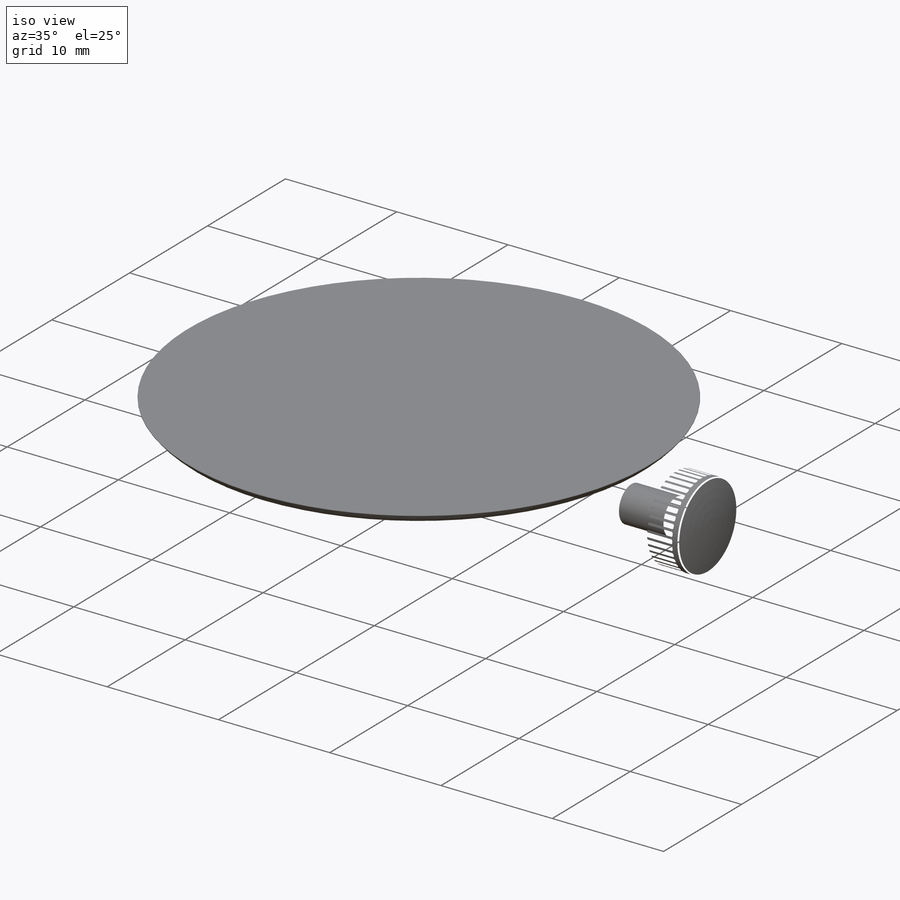
[diagram: iso view]
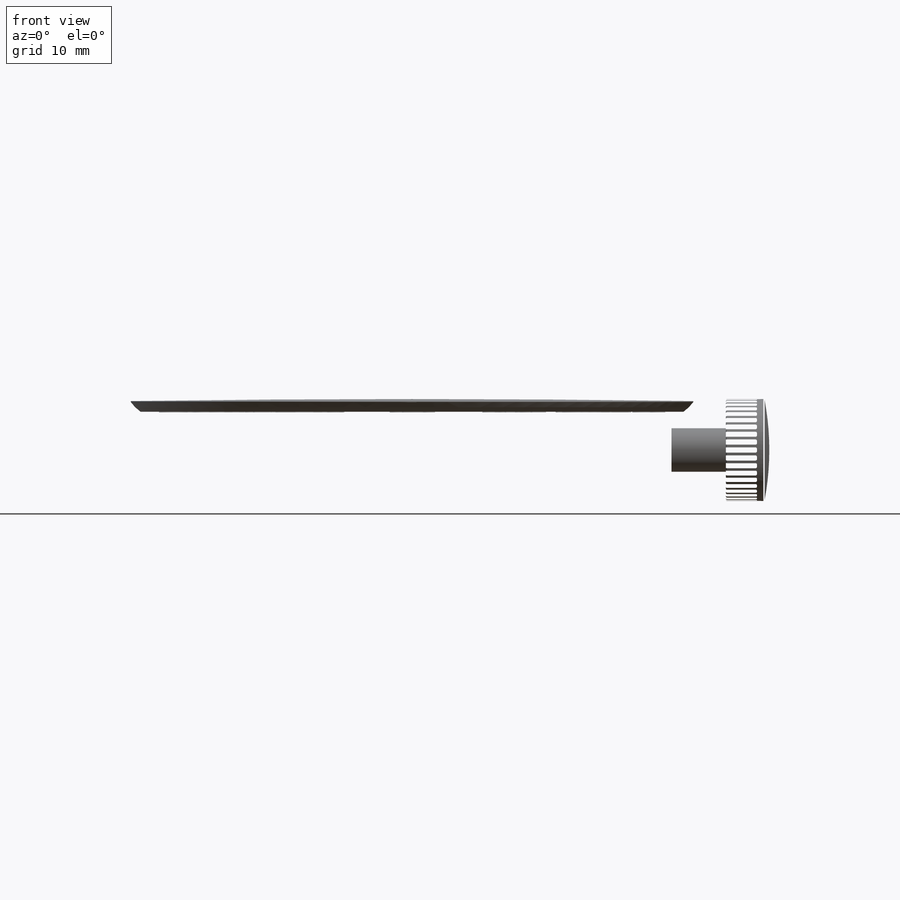
[diagram: front view]
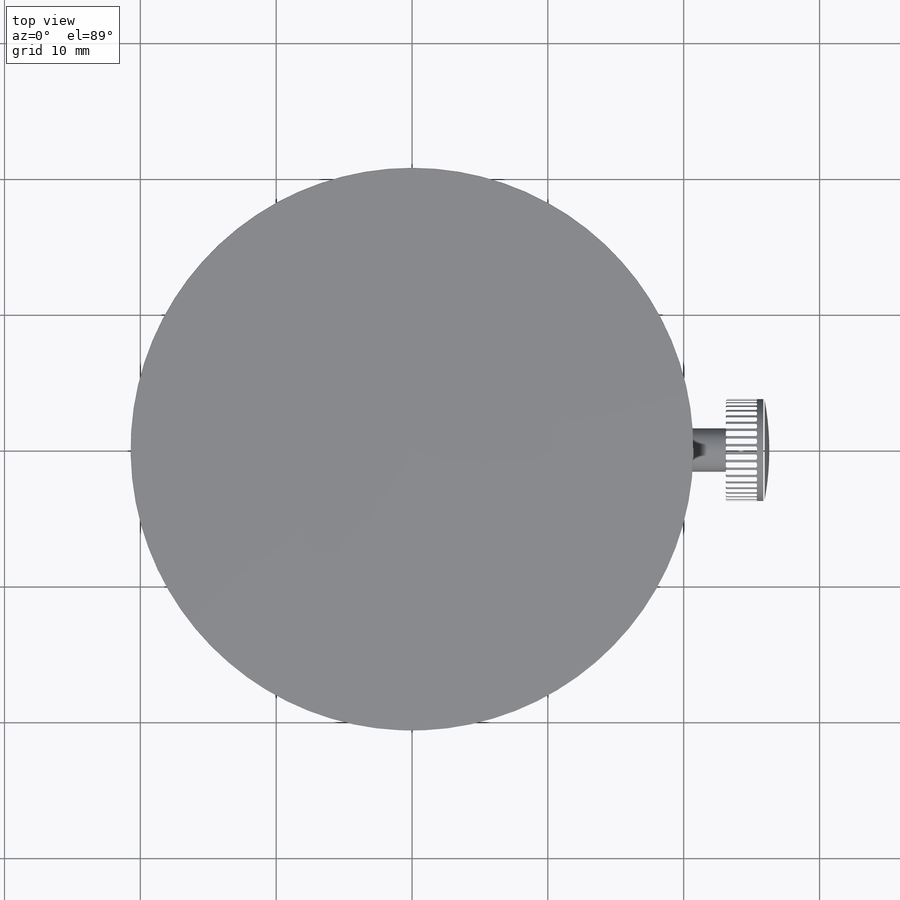
[diagram: top view]
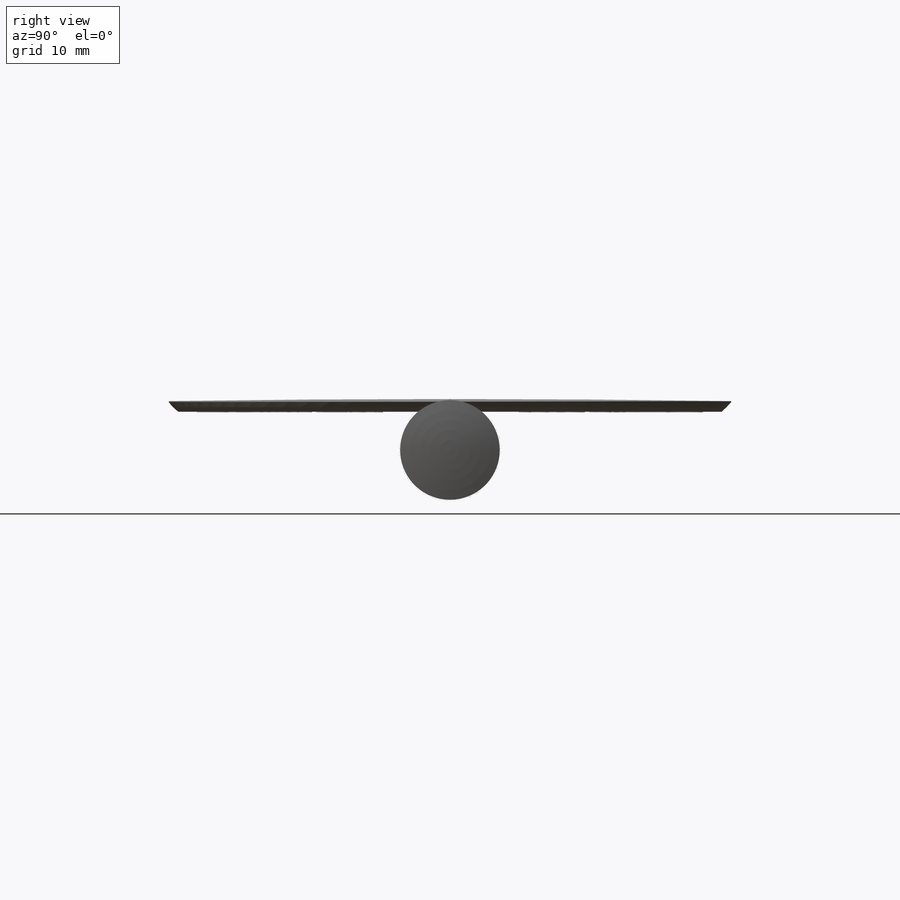
[diagram: right view]
SOLIDWORKS PART (.sldprt)
format: sldprt  version: not decoded by parser v0  size: 12,155,904 bytes
history: native  units: mm
features: sketch x84, fillet x68, cut_extrude x31, extrude x27, plane x12, revolve x9, mirror x6, pattern_circular x3, surface_op x3, material x1, chamfer x1 (+18 scaffold rows collapsed; 7 parser-record rows omitted)
feature tree (270):
  scaffold x18  (default folders/planes/origin — collapsed)
  material  "Material <not specified>"
  plane  "mid"  Offset=1.8mm
  plane  "base"  Offset=5.3mm
  sketch  "Sketch1"  dims[D1=42.0mm]
  parser-record x7  (decoder bookkeeping rows leaked as tree rows — omitted from the tree; the rows remain in map.json)
  sketch  "Sketch2"  dims[c1.D6=3.5mm c1.D1=0.15mm c1.D3=1.5mm c1.D4=5.0mm c1.D2=2.0mm c2.D2=45.0deg c2.D4=0.5mm c2.D5=3.5mm c3.D4=3.0mm c3.D5=0.4mm c3.D7=20.0mm c3.D8=4.5mm c3.D9=1.5mm c3.D2=1.0mm]
  revolve  "Revolve1"  Angle=360deg
  sketch  "Sketch3"  dims[c1.D3=~396.737358mm c1.D5=~396.737358mm c2.D3=~1103.204337mm c2.D1=0.2mm c2.D2=0.5mm c3.D3=2.8mm c4.D3=~179.454365deg c5.D3=0.1mm c5.D4=22.5mm c5.D5=0.3mm c5.D1=0.3mm c5.D6=0.1mm c5.D7=11.9mm c5.D2=0.1mm c6.D3=0.6mm c6.D5=23.0mm c6.D4=2.0mm c7.D3=0.6mm c7.D6=0.05mm c7.D8=0.5mm c7.D2=0.05mm]
  revolve  "Revolve2"  Angle=360deg
  sketch  "Sketch4"  dims[c1.D3=2.6mm c1.D2=2000.15mm c1.D4=2.0mm c1.D1=0.3mm c2.D2=13.0mm c2.D3=0.1mm c2.D4=3.0mm c2.D5=1.5mm c3.D3=1.0mm c3.D5=0.1mm c3.D4=1.4mm c4.D5=1.0mm c4.D1=0.05mm c4.D2=~0.401678mm c5.D2=120.0deg c5.D3=0.6mm c5.D4=0.05mm c6.D2=0.05mm c6.D1=0.0mm c7.D2=0.0mm]
  revolve  "Revolve3"  Angle=360deg
  sketch  "Sketch102"  dims[D1=17.5mm]
  sketch  "Sketch6"  dims[c1.D1=16.0mm c1.D2=19.4mm c2.D1=17.5mm c2.D3=~2.197533mm c2.D2=19.5mm c3.D3=2.2mm c3.D2=4.1mm c4.D3=~2.638798mm c4.D4=~2.507106mm c4.D1=13.0mm c5.D3=~3.773942mm c6.D3=30.0deg c6.D4=~3.256932mm c7.D4=15.0deg c7.D5=4.0mm c8.D5=45.0deg c8.D6=~3.130586mm c9.D6=60.0deg c9.D7=4.0mm c10.D7=75.0deg c10.D8=4.0mm c11.D8=90.0deg c11.D9=~3.98312mm c12.D9=15.0deg c12.D10=~3.945643mm c13.D10=~170.543568deg c14.D10=~3.945643mm c15.D10=30.0deg c15.D11=~3.857599mm c16.D11=45.0deg c16.D12=~3.674091mm c17.D12=60.0deg c17.D13=4.0mm c18.D13=75.0deg c18.D3=~3.981455mm c19.D3=14.0deg c20.D3=0.6mm c20.D2=0.6mm c21.D3=0.6mm c21.D4=0.6mm c21.D1=~17.350285mm c22.D1=82.5deg]
  sketch  "Sketch11"  dims[c1.D1=12.3mm c1.D2=1.25mm c2.D1=2.2mm c2.D2=13.55mm c2.D3=~12.647083mm c3.D3=17.0deg c4.D3=0.6mm]
  cut_extrude  "Cut-Extrude8"  [1 undecoded]
  fillet  "Fillet13"  Radius=0.1mm
  pattern_circular  "CirPattern1"  Count=12 Angle=30deg
  sketch  "Sketch119"  dims[D1=4.1mm D2=17.5mm D3=0.6mm]
  cut_extrude  "Cut-Extrude41"  [1 undecoded]
  fillet  "Fillet82"  Radius=0.1mm
  pattern_circular  "CirPattern4"  Count=12 Angle=360deg
  plane  "Plane3"  Offset=0.01mm
  sketch  "Sketch7"  dims[c1.D1=~16.99683mm c1.D2=16.3mm c2.D1=~2.029183mm c3.D1=165.0deg c4.D1=~16.367718mm c5.D1=3.6deg c5.D3=16.4mm c6.D3=15.0deg]
  extrude  "Boss-Extrude4"  Depth=0.025mm
  sketch  "Sketch12"  dims[c1.D1=12.75mm c1.D2=13.25mm c2.D2=10.0deg c2.D3=~13.514791mm c3.D3=10.0deg c3.D1=0.35mm c4.D3=22.5mm c5.D3=10.0deg]
  extrude  "Boss-Extrude5"  [1 undecoded]
  plane  "Plane1"  Offset=0.7mm
  plane  "Plane4"  Offset=0.05mm
  sketch  "Sketch13"  dims[c1.D1=~31.380653mm c1.D2=19.0mm c1.D3=4.0mm c1.D4=1.5mm c2.D1=~30.324533mm c2.D2=19.55mm c3.D1=0.15mm c3.D2=0.15mm c3.D5=19.15mm c4.D5=55.0deg c4.D6=~38.262504mm c5.D6=~0.899576deg c5.D5=19.15mm c6.D5=65.0deg c6.D6=2.2mm c6.D7=1.2mm c6.D1=0.2mm c6.D2=0.2mm]
  extrude  "Boss-Extrude1"  Depth=0.65mm
  sketch  "Sketch14"  dims[c1.D1=~31.075893mm c1.D2=~24.585151mm c1.D4=0.7mm c1.D5=3.2mm c2.D1=~30.129694mm c2.D2=~21.554118mm c3.D1=0.15mm c3.D2=0.15mm c3.D3=12.45mm c4.D3=~194.744468deg c5.D3=12.45mm c6.D3=60.0deg c6.D5=0.1mm c6.D6=1.7mm c6.D7=1.0mm c6.D1=0.15mm c6.D2=0.6mm]
  extrude  "Boss-Extrude2"  Depth=0.3mm
  sketch  "Sketch23"  dims[c1.D2=~37.293222mm c1.D3=35.0mm c1.D6=3.0mm c1.D7=1.0mm c1.D8=0.6mm c1.D9=31.0mm c1.D10=31.0mm c2.D7=1.0mm c2.D6=1.3mm c2.D3=35.5mm c2.D11=31.5mm c2.D8=0.4mm c2.D9=35.3mm c3.D6=1.0mm c3.D2=0.8mm c3.D4=22.5mm c4.D4=5.0deg c4.D5=33.0mm c4.D10=0.8mm c4.D8=1.0mm c4.D9=1.5mm c5.D9=175.0deg c5.D4=20.7mm c6.D4=5.0deg c6.D3=3.0mm c6.D9=4.6mm c6.D6=1.0mm c6.D1=0.0mm]
  extrude  "Boss-Extrude7"  [1 undecoded]
  sketch  "Sketch25"  dims[c1.D1=4.0mm c1.D2=2.2mm c1.D3=~22.018935mm c1.D4=~31.610697mm c1.D7=41.0mm c1.D9=0.7mm c2.D2=1.5mm c2.D1=1.5mm c2.D3=0.8mm c2.D4=0.8mm c2.D5=~24.144917mm c3.D5=20.0deg c3.D6=5.0mm c3.D8=~1.266434mm c4.D8=~1.35247deg c5.D8=1.0mm c5.D1=1.0mm]
  extrude  "Boss-Extrude8"  Depth=0.05mm
  sketch  "Sketch76"  dims[c1.D1=~21.31353mm c1.D2=~22.31353mm c2.D1=0.5mm c2.D2=0.1mm]
  extrude  "Boss-Extrude17"  [1 undecoded]
  sketch  "Sketch49"  dims[D1=0.4mm]
  cut_extrude  "Cut-Extrude16"  Depth=0.2mm
  sketch  "Sketch72"  dims[c1.D1=~4.788217mm c1.D3=~2.548619mm c2.D1=15.35mm c2.D2=19.65mm c2.D3=~29.678802mm c2.D4=~24.252819mm c3.D2=39.3mm c3.D1=30.7mm c4.D2=39.3mm c4.D1=0.1mm c5.D2=4.3mm c6.D2=90.0deg c6.D3=0.1mm c6.D1=0.1mm c7.D2=0.1mm c7.D3=0.1mm c7.D4=0.1mm c7.D1=0.1mm c8.D2=0.1mm]
  cut_extrude  "Cut-Extrude20"  Depth=0.1mm
  sketch  "Sketch73"  dims[D1=0.0mm D2=0.0mm]
  cut_extrude  "Cut-Extrude21"  Depth=0.1mm
  sketch  "Sketch74"  dims[c1.D1=~38.377448mm c1.D2=~31.432427mm c1.D3=~25.234605mm c1.D4=~28.647541mm c2.D1=0.05mm c2.D2=0.05mm c2.D3=0.05mm c2.D4=0.05mm]
  extrude  "Boss-Extrude15"  Depth=0.025mm
  sketch  "Sketch75"  dims[D1=0.0mm D2=0.0mm]
  extrude  "Boss-Extrude16"  Depth=0.025mm
  sketch  "Sketch50"  dims[D1=0.025mm D2=0.025mm D3=0.07mm D4=0.03mm]
  revolve  "Revolve6"  Angle=360deg
  fillet  "Fillet39"  Radius=0.05mm
  sketch  "Sketch30"  dims[D1=34.0mm]
  sketch  "Sketch52"  dims[c1.D1=0.1mm c1.D2=15.0mm c1.D3=~1.530541mm c2.D3=60.0deg c2.D4=1.9mm]
  revolve  "Revolve7"  Angle=360deg
  sketch  "Sketch31"  dims[c1.D4=~1102.831691mm c1.D1=0.5mm c1.D2=17.0mm c1.D3=0.05mm c2.D4=0.3mm c2.D2=16.0mm c2.D1=18.05mm c3.D4=0.5mm c3.D1=0.05mm c3.D3=36.1mm c3.D5=0.05mm c3.D6=0.1mm c3.D7=0.05mm c3.D8=0.05mm c4.D1=0.05mm c4.D9=0.05mm c4.D7=0.05mm c4.D8=0.05mm c5.D9=0.05mm c5.D10=6.0mm c5.D2=0.05mm]
  revolve  "Revolve5"  Angle=360deg
  plane  "Plane5"  Offset=4mm
  plane  "Plane6"  Offset=23.1mm
  sketch  "Sketch34"  dims[D1=3.4mm]
  cut_extrude  "Cut-Extrude9"  Depth=26mm
  sketch  "Sketch116"  dims[D1=17.0mm D2=3.2mm D3=20.0mm]
  revolve  "Revolve8"  Angle=360deg
  sketch  "Sketch110"  dims[D1=0.4mm]
  cut_extrude  "Cut-Extrude36"  [1 undecoded]
  sketch  "Sketch111"  dims[c1.D2=~30.355945mm c1.D1=20.0mm c2.D2=2.0mm c2.D3=54.0mm]
  cut_extrude  "Cut-Extrude38"  [1 undecoded]
  sketch  "Sketch112"  dims[D1=0.2mm D2=5.5mm]
  extrude  "Boss-Extrude25"  Depth=5.8mm
  sketch  "Sketch117"
  extrude  "Boss-Extrude26"  [1 undecoded]
  sketch  "Sketch118"  dims[D1=1.0mm]
  cut_extrude  "Cut-Extrude40"  Depth=24mm
  sketch  "Sketch114"  dims[D1=2.0mm]
  cut_extrude  "Cut-Extrude39"  Depth=24mm
  sketch  "Sketch157"  dims[D1=0.0mm D2=0.0mm]
  extrude  "Boss-Extrude39"  Depth=8mm
  sketch  "Sketch158"
  cut_extrude  "Cut-Extrude63"  [1 undecoded]
  sketch  "Sketch35"  dims[D1=0.1mm]
  extrude  "Boss-Extrude11"  Depth=4mm
  sketch  "Sketch38"  dims[D1=2.0mm]
  extrude  "Boss-Extrude12"  Depth=3.2mm
  sketch  "Sketch41"  dims[c1.D1=20.0mm c1.D3=12.0mm c1.D2=2.5mm c2.D1=360.0deg]
  fillet  "Fillet37"  Radius=0.1mm
  sketch  "Sketch39"  dims[D1=0.3mm]
  cut_extrude  "Cut-Extrude10"  Depth=0.6mm
  fillet  "Fillet63"  Radius=0.05mm
  fillet  "Fillet38"  Radius=0.05mm
  pattern_circular  "CirPattern3"  Count=40 Angle=9deg
  sketch  "Sketch149"  dims[D1=2.0mm D2=45.0mm]
  sketch  "Sketch150"  dims[D1=7.0mm D2=0.0mm D3=0.0mm D4=0.0mm D5=0.0mm]
  extrude  "Boss-Extrude36"  [1 undecoded]
  sketch  "Sketch151"  dims[D1=5.0mm]
  cut_extrude  "Cut-Extrude59"  Depth=1mm
  sketch  "Sketch152"
  cut_extrude  "Cut-Extrude60"  [1 undecoded]
  sketch  "Sketch153"
  extrude  "Boss-Extrude37"  [1 undecoded]
  sketch  "Sketch154"  dims[D1=0.0mm D2=0.0mm D3=0.0mm D4=0.0mm]
  extrude  "Boss-Extrude38"  [1 undecoded]
  cut_extrude  "Cut-Extrude61"  [1 undecoded]
  sketch  "Sketch156"  dims[D1=1.2mm]
  cut_extrude  "Cut-Extrude62"  Depth=1.4mm
  plane  "Plane19"
  sketch  "Sketch159"  dims[D1=0.2mm D2=0.3mm D3=0.1mm D4=0.1mm D5=1.6mm D6=0.1mm]
  revolve  "Revolve10"  Angle=360deg
  fillet  "Fillet111"  Radius=0.2mm
  mirror  "Mirror5"
  mirror  "Mirror6"
  sketch  "Sketch161"  dims[c1.D1=~31.819805mm c2.D1=75.0deg c2.D2=~5.000001mm c3.D2=15.0deg c3.D3=5.0mm c4.D3=15.0deg c4.D4=5.0mm c5.D4=25.0deg c5.D5=0.6mm]
  cut_extrude  "Cut-Extrude64"  Depth=1mm
  fillet  "Fillet112"  Radius=0.1mm
  fillet  "Fillet113"  Radius=0.1mm
  fillet  "Fillet114"  Radius=0.1mm
  fillet  "Fillet115"  Radius=0.1mm
  fillet  "Fillet116"  Radius=0.1mm
  fillet  "Fillet117"  Radius=0.1mm
  fillet  "Fillet118"  Radius=0.1mm
  fillet  "Fillet119"  Radius=0.1mm
  fillet  "Fillet107"  Radius=2mm
  fillet  "Fillet109"  Radius=2mm
  fillet  "Fillet110"  Radius=2mm
  fillet  "Fillet108"  Radius=0.5mm
  plane  "Plane7"  Offset=10mm
  fillet  "Fillet103"  Radius=0.1mm
  fillet  "Fillet98"  Radius=0.1mm
  fillet  "Fillet102"  Radius=0.2mm
  fillet  "Fillet105"  Radius=0.1mm
  fillet  "Fillet106"  Radius=0.1mm
  sketch  "Sketch56"  dims[c1.D5=~32.811071mm c1.D6=~32.390179mm c1.D1=51.0mm c1.D2=76.0mm c1.D3=31.0mm c2.D2=41.0mm c2.D4=41.0mm c2.D5=12.0deg c2.D6=12.0deg c3.D4=0.9mm]
  sketch  "Sketch57"
  sketch  "Sketch120"  dims[D3=0.0mm D1=1.5mm D2=1.5mm]
  extrude  "Boss-Extrude27"  Depth=4mm
  fillet  "Fillet83"  Radius=10mm
  sketch  "Sketch121"  dims[c1.D1=~1.975006mm c1.D3=3.25mm c2.D1=12.0mm c2.D2=12.0mm c2.D3=0.2mm]
  cut_extrude  "Cut-Extrude42"  Depth=0.1mm
  fillet  "Fillet97"  Radius=0.4mm
  sketch  "Sketch122"  dims[D1=0.1mm]
  extrude  "Boss-Extrude28"  Depth=0.1mm
  plane  "Plane17"
  sketch  "Sketch124"  dims[D3=7.0mm D1=2.95mm D2=2.0mm]
  revolve  "Revolve9"  Angle=360deg
  fillet  "Fillet124"  Radius=0.1mm
  sketch  "Sketch162"
  cut_extrude  "Cut-Extrude65"  Depth=0.1mm
  mirror  "Mirror1"
  sketch  "Sketch126"
  extrude  "Boss-Extrude29"  [1 undecoded]
  fillet  "Fillet84"  Radius=10mm
  sketch  "Sketch127"  dims[D1=1.4mm]
  cut_extrude  "Cut-Extrude43"  [1 undecoded]
  sketch  "Sketch129"  dims[c1.D1=~12.547766mm c2.D1=20.0deg]
  cut_extrude  "Cut-Extrude44"  [1 undecoded]
  sketch  "Sketch130"  dims[c1.D3=~1.785547mm c2.D3=15.0deg c2.D4=~9.123323mm c3.D4=55.0deg c3.D5=~0.797709mm c4.D5=15.0deg c4.D6=~5.076813mm c5.D6=10.0deg c5.D1=0.2mm c5.D2=0.0mm c5.D5=3.0mm c6.D6=3.0mm]
  extrude  "Boss-Extrude31"  [1 undecoded]
  fillet  "Fillet95"  [1 undecoded]
  plane  "Plane18"  Offset=1.5mm
  sketch  "Sketch128"  dims[c1.D1=0.2mm c1.D4=18.0mm c1.D5=15.0mm c2.D5=45.0deg c2.D2=~5.307521mm c3.D2=60.0deg c4.D2=0.1mm c4.D3=6.4mm c4.D1=1.5mm]
  surface_op  "Surface-Extrude11"
  sketch  "Sketch132"  dims[D1=80.0mm]
  sketch  "Sketch134"
  surface_op  "Surface-Trim2"
  sketch  "Sketch133"  dims[c1.D4=2.3mm c1.D3=~4.554006mm c2.D3=60.0deg c2.D4=0.5mm c2.D1=0.0mm c2.D2=1.5mm]
  extrude  "Boss-Extrude32"  [1 undecoded]
  surface_op  "Surface-Trim3"
  sketch  "Sketch135"  dims[D1=1.5mm]
  mirror  "Mirror2"
  mirror  "Mirror3"
  sketch  "Sketch137"  dims[D1=3.0mm D2=4.9mm]
  cut_extrude  "Cut-Extrude45"  Depth=0.2mm
  sketch  "Sketch138"  dims[D1=5.0mm]
  cut_extrude  "Cut-Extrude46"  Depth=72.2mm
  fillet  "Fillet85"  Radius=2mm
  fillet  "Fillet86"  Radius=2mm
  sketch  "Sketch139"
  cut_extrude  "Cut-Extrude47"  [1 undecoded]
  sketch  "Sketch140"  dims[D1=1.0mm]
  cut_extrude  "Cut-Extrude48"  Depth=0.8mm
  sketch  "Sketch141"
  cut_extrude  "Cut-Extrude49"  Depth=0.8mm
  sketch  "Sketch142"  dims[D1=0.1mm]
  extrude  "Boss-Extrude33"  Depth=0.1mm
  mirror  "Mirror4"
  sketch  "Sketch143"  dims[D1=0.1mm]
  extrude  "Boss-Extrude34"  [1 undecoded]
  sketch  "Sketch144"  dims[c1.D3=~1.732841mm c2.D3=45.0deg c2.D4=2.0mm c2.D2=2.0mm c3.D3=~0.481966mm c4.D3=45.0deg c5.D3=15.0mm c6.D3=45.0deg c6.D4=1.0mm c6.D2=0.2mm c6.D6=2.0mm c7.D3=~7.674609mm c8.D3=45.0deg c8.D4=15.5mm c8.D1=0.5mm c8.D2=0.0mm c9.D1=0.0mm c9.D2=0.5mm c9.D5=0.8mm c10.D1=0.0mm c10.D2=1.0mm]
  cut_extrude  "Cut-Extrude55"  Depth=3.5mm
  sketch  "Sketch145"  dims[c1.D3=1.75mm c1.D7=1.75mm c1.D8=18.0mm c1.D4=18.0mm c2.D3=0.8mm c2.D5=2.55mm c3.D5=15.0deg c3.D6=0.8mm c4.D6=70.0deg c4.D3=0.1mm c4.D7=0.9mm c4.D4=0.9mm c4.D9=~1.038446mm c5.D9=~179.294101deg c6.D9=0.2mm c6.D1=0.1mm c6.D2=0.0mm c6.D4=0.8mm]
  extrude  "Boss-Extrude35"  Depth=0.15mm
  fillet  "Fillet90"  Radius=3mm
  fillet  "Fillet91"  Radius=3.8mm
  sketch  "Sketch146"  dims[c1.D1=~4.24544mm c2.D1=10.0deg c2.D2=7.5mm c3.D1=0.1mm]
  cut_extrude  "Cut-Extrude56"  Depth=0.2mm
  sketch  "Sketch147"  dims[c1.D1=~2.238338mm c2.D1=33.0deg c2.D2=2.65mm c3.D2=11.0deg]
  sketch  "Sketch148"  dims[D1=1.6mm D2=10.0mm]
  cut_extrude  "Cut-Extrude57"  Depth=5mm
  fillet  "Fillet92"  Radius=1mm
  fillet  "Fillet94"  Radius=0.5mm
  fillet  "Fillet125"  Radius=0.3mm
  fillet  "Fillet126"  Radius=0.15mm
  fillet  "Fillet127"  Radius=0.4mm
  fillet  "Fillet128"  Radius=0.3mm
  fillet  "Fillet129"  Radius=0.2mm
  fillet  "Fillet130"  Radius=0.3mm
  fillet  "Fillet132"  Radius=0.3mm
  fillet  "Fillet131"  Radius=0.2mm
  fillet  "Fillet133"  Radius=0.1mm
  fillet  "Fillet134"  Radius=0.1mm
  fillet  "Fillet96"  Radius=0.4mm
  sketch  "Sketch163"  dims[c1.D3=~6.399816mm c2.D3=~20.692809deg c2.D2=~15.899012mm c3.D2=20.0deg c3.D1=~15.043169mm c4.D1=22.0deg c4.D2=~10.899599mm c5.D2=36.0deg c5.D1=0.1mm c6.D2=0.1mm c6.D1=0.15mm]
  sketch  "Sketch164"  dims[D3=2.0mm D4=2.0mm D1=2.0mm D2=2.0mm]
  extrude  "Boss-Extrude40"  Depth=2mm
  sketch  "Sketch165"  dims[D1=0.2mm D2=0.2mm]
  cut_extrude  "Cut-Extrude66"  Depth=0.2mm
  fillet  "Fillet135"  Radius=0.5mm
  fillet  "Fillet136"  Radius=0.3mm
  fillet  "Fillet137"  Radius=0.2mm
  fillet  "Fillet24"  Radius=0.05mm
  fillet  "Fillet42"  Radius=0.1mm
  fillet  "Fillet25"  Radius=0.05mm
  fillet  "Fillet65"  Radius=0.1mm
  fillet  "Fillet66"  Radius=0.05mm
  fillet  "Fillet43"  Radius=0.1mm
  fillet  "Fillet26"  Radius=0.05mm
  fillet  "Fillet44"  Radius=0.05mm
  fillet  "Fillet45"  Radius=0.05mm
  fillet  "Fillet46"  Radius=0.05mm
  fillet  "Fillet48"  Radius=0.1mm
  fillet  "Fillet49"  Radius=0.05mm
  fillet  "Fillet120"  Radius=0.2mm
  chamfer  "Chamfer1"  Distance=0.2mm Angle=45deg
  fillet  "Fillet121"  Radius=0.1mm
  fillet  "Fillet122"  Radius=0.2mm
  fillet  "Fillet123"  Radius=0.2mm
  plane  "logo"  Offset=13mm
  sketch  "Sketch42"
  sketch  "Sketch43"  dims[c1.D12=1.05mm c1.D18=1.02mm c1.D20=1.06mm c1.D1=1.48mm c1.D2=1.48mm c1.D3=0.43mm c1.D4=0.43mm c1.D5=0.5mm c1.D6=0.5mm c1.D7=0.48mm c1.D8=2.12mm c1.D9=~2.018208mm c2.D9=77.0deg c2.D10=~0.426691mm c3.D10=77.0deg c3.D11=3.2mm c3.D12=0.63mm c3.D13=1.17mm c3.D14=0.6mm c3.D15=1.56mm c3.D16=1.2mm c3.D17=0.92mm c3.D18=2.2mm c3.D19=1.35mm]
  sketch  "Sketch106"  dims[D1=0.0mm]
  sketch  "Sketch107"  dims[c1.D3=35.9mm c1.D9=4.0mm c1.D12=2.25mm c1.D15=2.23mm c1.D19=1.466mm c1.D22=0.58mm c1.D24=0.29mm c1.D29=0.37mm c1.D1=0.2mm c1.D2=0.52mm c1.D4=0.34mm c1.D5=0.86mm c1.D6=0.68mm c1.D7=1.85mm c1.D8=0.85mm c1.D10=1.95mm c1.D11=1.03mm c1.D13=4.6mm c1.D14=3.1mm c1.D16=0.74mm c1.D17=4.93mm c1.D20=5.21mm c1.D21=3.31mm c1.D23=5.87mm c1.D25=6.03mm c1.D26=~1.084065mm c2.D26=43.5deg c2.D27=1.3mm c2.D28=0.6mm c2.D30=6.25mm c2.D18=0.6mm c2.D1=0.03mm]
  sketch  "Sketch108"  dims[D4=0.07mm D5=0.4mm D6=0.3mm D1=0.0mm D2=0.0mm D3=0.0mm]
  cut_extrude  "Cut-Extrude35"  Depth=0.05mm
  fillet  "Fillet76"  Radius=0.25mm
  fillet  "Fillet77"  Radius=0.1mm
  fillet  "Fillet78"  Radius=0.05mm
  sketch  "Sketch109"  dims[D1=0.01mm D2=0.01mm]
  extrude  "Boss-Extrude24"  Depth=0.01mm
decode coverage: 190 of 232 modeling features carry decoded parameters
note: ~ marks probable driven/reference dimensions
note: 22 parameter values undecoded
summary: no parameter record found for 22 features
note: suppression state not decoded; provenance and decode notes live in map.json
